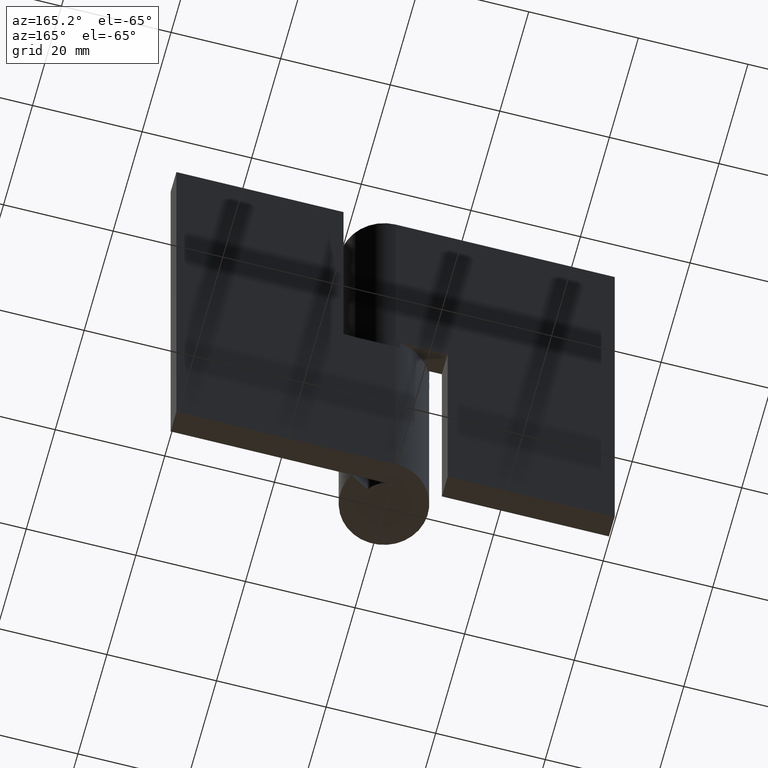
[diagram: clean part render]
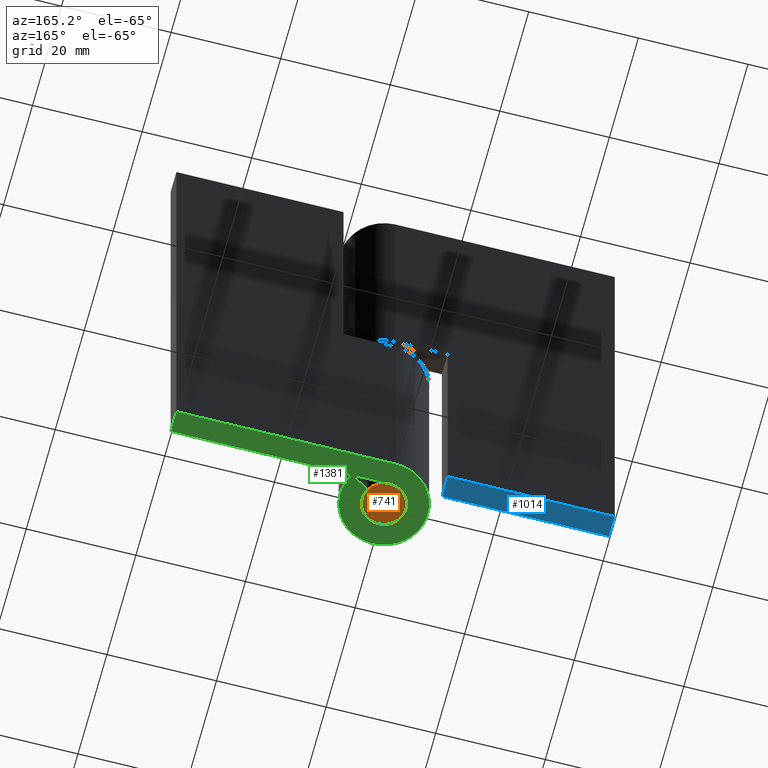
[diagram: same view with three faces highlighted in distinct colors, each labeled with its STEP entity id]
A machine part, auxiliary view with three faces highlighted in distinct colors.
Their STEP definitions:

[orange] entity #741 — the highlighted face is a freeform B-spline surface patch.
#549=CARTESIAN_POINT('',(0.244194158265194,-3.992539193679775,2.442491E-015));
#550=VERTEX_POINT('',#549);
#556=CARTESIAN_POINT('',(4.0,0.0,0.0));
#557=VERTEX_POINT('',#556);
#558=CARTESIAN_POINT('',(4.0,0.0,0.0));
#559=CARTESIAN_POINT('',(4.000000000000000,-3.762824267385283,0.0));
#560=CARTESIAN_POINT('',(0.244194158265194,-3.992539193679775,2.442491E-015));
#568=(BOUNDED_CURVE()B_SPLINE_CURVE(2,(#558,#559,#560),.UNSPECIFIED.,.F.,.U.)B_SPLINE_CURVE_WITH_KNOTS((3,3),(0.500000000000000,0.739332962231098),.UNSPECIFIED.)CURVE()GEOMETRIC_REPRESENTATION_ITEM()RATIONAL_B_SPLINE_CURVE((1.0,0.719603993295901,0.976072041649905))REPRESENTATION_ITEM(''));
#569=EDGE_CURVE('',#557,#550,#568,.T.);
#571=CARTESIAN_POINT('',(-0.472136938659875,3.972038105450762,2.725851E-015));
#572=VERTEX_POINT('',#571);
#573=CARTESIAN_POINT('',(-0.472136938659875,3.972038105450762,2.725851E-015));
#574=CARTESIAN_POINT('',(-0.236896478640829,4.0,0.0));
#575=CARTESIAN_POINT('',(0.0,4.0,0.0));
#576=CARTESIAN_POINT('',(4.000000000000000,4.000000000000000,0.0));
#577=CARTESIAN_POINT('',(4.0,0.0,0.0));
#585=(BOUNDED_CURVE()B_SPLINE_CURVE(2,(#573,#574,#575,#576,#577),.UNSPECIFIED.,.F.,.U.)B_SPLINE_CURVE_WITH_KNOTS((3,2,3),(0.229562473512850,0.250000000000000,0.500000000000000),.UNSPECIFIED.)CURVE()GEOMETRIC_REPRESENTATION_ITEM()RATIONAL_B_SPLINE_CURVE((0.956026754182408,0.976055948330373,1.0,0.707106781186548,1.0))REPRESENTATION_ITEM(''));
#586=EDGE_CURVE('',#572,#557,#585,.T.);
#630=CARTESIAN_POINT('',(-4.0,0.0,0.0));
#631=VERTEX_POINT('',#630);
#632=CARTESIAN_POINT('',(-4.0,0.0,0.0));
#633=CARTESIAN_POINT('',(-4.0,3.552698103746307,0.0));
#634=CARTESIAN_POINT('',(-0.472136938659875,3.972038105450762,2.725851E-015));
#642=(BOUNDED_CURVE()B_SPLINE_CURVE(2,(#632,#633,#634),.UNSPECIFIED.,.F.,.U.)B_SPLINE_CURVE_WITH_KNOTS((3,3),(0.0,0.229562473512850),.UNSPECIFIED.)CURVE()GEOMETRIC_REPRESENTATION_ITEM()RATIONAL_B_SPLINE_CURVE((1.0,0.731050832856174,0.956026754182408))REPRESENTATION_ITEM(''));
#643=EDGE_CURVE('',#631,#572,#642,.T.);
#645=CARTESIAN_POINT('',(0.244194158265194,-3.992539193679776,2.442491E-015));
#646=CARTESIAN_POINT('',(0.122211053320474,-4.0,0.0));
#647=CARTESIAN_POINT('',(0.0,-4.0,0.0));
#648=CARTESIAN_POINT('',(-4.000000000000000,-4.000000000000000,0.0));
#649=CARTESIAN_POINT('',(-4.0,0.0,0.0));
#657=(BOUNDED_CURVE()B_SPLINE_CURVE(2,(#645,#646,#647,#648,#649),.UNSPECIFIED.,.F.,.U.)B_SPLINE_CURVE_WITH_KNOTS((3,2,3),(0.739332962231098,0.750000000000000,1.0),.UNSPECIFIED.)CURVE()GEOMETRIC_REPRESENTATION_ITEM()RATIONAL_B_SPLINE_CURVE((0.976072041649904,0.987502787890646,1.0,0.707106781186548,1.0))REPRESENTATION_ITEM(''));
#658=EDGE_CURVE('',#550,#631,#657,.T.);
#730=CARTESIAN_POINT('',(-4.399599984494448,-4.399502628049594,0.0));
#731=CARTESIAN_POINT('',(4.399600199071169,-4.399502628049594,0.0));
#732=CARTESIAN_POINT('',(-4.399599984494448,4.399527232846957,0.0));
#733=CARTESIAN_POINT('',(4.399600199071169,4.399527232846957,0.0));
#734=B_SPLINE_SURFACE_WITH_KNOTS('',1,1,((#730,#732),(#731,#733)),.UNSPECIFIED.,.F.,.F.,.U.,(2,2),(2,2),(0.0,8.799200183565617),(0.0,8.799029860896550),.UNSPECIFIED.);
#735=ORIENTED_EDGE('',*,*,#643,.T.);
#736=ORIENTED_EDGE('',*,*,#586,.T.);
#737=ORIENTED_EDGE('',*,*,#569,.T.);
#738=ORIENTED_EDGE('',*,*,#658,.T.);
#739=EDGE_LOOP('',(#735,#736,#737,#738));
#740=FACE_OUTER_BOUND('',#739,.T.);
#741=ADVANCED_FACE('',(#740),#734,.F.);

[blue] entity #1014 — the highlighted face is a freeform B-spline surface patch.
#788=CARTESIAN_POINT('',(-9.500000000000000,8.0,0.0));
#789=VERTEX_POINT('',#788);
#790=CARTESIAN_POINT('',(-9.500000000000000,4.0,0.0));
#791=VERTEX_POINT('',#790);
#792=CARTESIAN_POINT('',(-9.500000000000000,8.0,0.0));
#793=CARTESIAN_POINT('',(-9.500000000000000,4.0,0.0));
#794=QUASI_UNIFORM_CURVE('',1,(#792,#793),.UNSPECIFIED.,.F.,.U.);
#795=EDGE_CURVE('',#789,#791,#794,.T.);
#973=CARTESIAN_POINT('',(-39.999993000000003,8.0,0.0));
#974=VERTEX_POINT('',#973);
#980=CARTESIAN_POINT('',(-39.999993000000003,4.0,0.0));
#981=VERTEX_POINT('',#980);
#982=CARTESIAN_POINT('',(-39.999993000000003,8.0,0.0));
#983=CARTESIAN_POINT('',(-39.999993000000003,4.0,0.0));
#984=QUASI_UNIFORM_CURVE('',1,(#982,#983),.UNSPECIFIED.,.F.,.U.);
#985=EDGE_CURVE('',#974,#981,#984,.T.);
#995=CARTESIAN_POINT('',(-41.523467018610873,3.800200007752776,0.0));
#996=CARTESIAN_POINT('',(-7.976524617933193,3.800200007752776,0.0));
#997=CARTESIAN_POINT('',(-41.523467018610873,8.199800099535585,0.0));
#998=CARTESIAN_POINT('',(-7.976524617933193,8.199800099535585,0.0));
#999=B_SPLINE_SURFACE_WITH_KNOTS('',1,1,((#995,#997),(#996,#998)),.UNSPECIFIED.,.F.,.F.,.U.,(2,2),(2,2),(0.0,33.546942400677672),(0.0,4.399600091782808),.UNSPECIFIED.);
#1000=CARTESIAN_POINT('',(-9.500000000000000,8.0,0.0));
#1001=CARTESIAN_POINT('',(-39.999993000000003,8.0,0.0));
#1002=QUASI_UNIFORM_CURVE('',1,(#1000,#1001),.UNSPECIFIED.,.F.,.U.);
#1003=EDGE_CURVE('',#789,#974,#1002,.T.);
#1004=ORIENTED_EDGE('',*,*,#1003,.F.);
#1005=ORIENTED_EDGE('',*,*,#795,.T.);
#1006=CARTESIAN_POINT('',(-39.999993000000003,4.0,0.0));
#1007=CARTESIAN_POINT('',(-9.500000000000000,4.0,0.0));
#1008=QUASI_UNIFORM_CURVE('',1,(#1006,#1007),.UNSPECIFIED.,.F.,.U.);
#1009=EDGE_CURVE('',#981,#791,#1008,.T.);
#1010=ORIENTED_EDGE('',*,*,#1009,.F.);
#1011=ORIENTED_EDGE('',*,*,#985,.F.);
#1012=EDGE_LOOP('',(#1004,#1005,#1010,#1011));
#1013=FACE_OUTER_BOUND('',#1012,.T.);
#1014=ADVANCED_FACE('',(#1013),#999,.F.);

[green] entity #1381 — the highlighted face is a freeform B-spline surface patch.
#1304=CARTESIAN_POINT('',(-10.397580681026060,-8.799121360714846,0.0));
#1305=CARTESIAN_POINT('',(42.397600279777542,-8.799121360714846,0.0));
#1306=CARTESIAN_POINT('',(-10.397580681026060,8.799196658454495,0.0));
#1307=CARTESIAN_POINT('',(42.397600279777542,8.799196658454495,0.0));
#1308=B_SPLINE_SURFACE_WITH_KNOTS('',1,1,((#1304,#1306),(#1305,#1307)),.UNSPECIFIED.,.F.,.F.,.U.,(2,2),(2,2),(0.0,52.795180960803599),(0.0,17.598318019169341),.UNSPECIFIED.);
#1309=CARTESIAN_POINT('',(3.478415587591571,1.975000000000000,0.0));
#1310=VERTEX_POINT('',#1309);
#1311=CARTESIAN_POINT('',(0.0,4.0,0.0));
#1312=VERTEX_POINT('',#1311);
#1313=CARTESIAN_POINT('',(3.478415587591569,1.975000000000001,0.0));
#1314=CARTESIAN_POINT('',(4.991063490863774,-0.689110402673284,0.0));
#1315=CARTESIAN_POINT('',(2.813108257766271,-2.843663469907650,0.0));
#1316=CARTESIAN_POINT('',(0.635153024668771,-4.998216537142015,0.0));
#1317=CARTESIAN_POINT('',(-2.012461179749808,-3.456877203488723,0.0));
#1318=CARTESIAN_POINT('',(-4.660075384168389,-1.915537869835431,0.0));
#1319=CARTESIAN_POINT('',(-3.861833037169971,1.042231065082284,0.0));
#1320=CARTESIAN_POINT('',(-3.063590690171554,4.0,0.0));
#1321=CARTESIAN_POINT('',(0.0,4.0,0.0));
#1329=(BOUNDED_CURVE()B_SPLINE_CURVE(2,(#1313,#1314,#1315,#1316,#1317,#1318,#1319,#1320,#1321),.UNSPECIFIED.,.F.,.U.)B_SPLINE_CURVE_WITH_KNOTS((3,2,2,2,3),(0.0,0.250000000000000,0.500000000000000,0.750000000000000,1.0),.UNSPECIFIED.)CURVE()GEOMETRIC_REPRESENTATION_ITEM()RATIONAL_B_SPLINE_CURVE((1.0,0.793901053743655,1.0,0.793901053743655,1.0,0.793901053743655,1.0,0.793901053743655,1.0))REPRESENTATION_ITEM(''));
#1330=EDGE_CURVE('',#1310,#1312,#1329,.T.);
#1331=ORIENTED_EDGE('',*,*,#1330,.F.);
#1332=CARTESIAN_POINT('',(6.956831175183141,3.950000000000000,0.0));
#1333=VERTEX_POINT('',#1332);
#1334=CARTESIAN_POINT('',(6.956831175183141,3.950000000000000,0.0));
#1335=CARTESIAN_POINT('',(3.478415587591571,1.975000000000000,0.0));
#1336=QUASI_UNIFORM_CURVE('',1,(#1334,#1335),.UNSPECIFIED.,.F.,.U.);
#1337=EDGE_CURVE('',#1333,#1310,#1336,.T.);
#1338=ORIENTED_EDGE('',*,*,#1337,.F.);
#1339=CARTESIAN_POINT('',(0.0,8.0,0.0));
#1340=VERTEX_POINT('',#1339);
#1341=CARTESIAN_POINT('',(6.956831175183138,3.950000000000002,0.0));
#1342=CARTESIAN_POINT('',(9.982126981727548,-1.378220805346568,0.0));
#1343=CARTESIAN_POINT('',(5.626216515532542,-5.687326939815300,0.0));
#1344=CARTESIAN_POINT('',(1.270306049337542,-9.996433074284029,0.0));
#1345=CARTESIAN_POINT('',(-4.024922359499616,-6.913754406977446,0.0));
#1346=CARTESIAN_POINT('',(-9.320150768336777,-3.831075739670861,0.0));
#1347=CARTESIAN_POINT('',(-7.723666074339943,2.084462130164569,0.0));
#1348=CARTESIAN_POINT('',(-6.127181380343109,8.0,0.0));
#1349=CARTESIAN_POINT('',(0.0,8.0,0.0));
#1357=(BOUNDED_CURVE()B_SPLINE_CURVE(2,(#1341,#1342,#1343,#1344,#1345,#1346,#1347,#1348,#1349),.UNSPECIFIED.,.F.,.U.)B_SPLINE_CURVE_WITH_KNOTS((3,2,2,2,3),(0.0,0.250000000000000,0.500000000000000,0.750000000000000,1.0),.UNSPECIFIED.)CURVE()GEOMETRIC_REPRESENTATION_ITEM()RATIONAL_B_SPLINE_CURVE((1.0,0.793901053743655,1.0,0.793901053743655,1.0,0.793901053743655,1.0,0.793901053743655,1.0))REPRESENTATION_ITEM(''));
#1358=EDGE_CURVE('',#1333,#1340,#1357,.T.);
#1359=ORIENTED_EDGE('',*,*,#1358,.T.);
#1360=CARTESIAN_POINT('',(40.0,8.0,0.0));
#1361=VERTEX_POINT('',#1360);
#1362=CARTESIAN_POINT('',(40.0,8.0,0.0));
#1363=CARTESIAN_POINT('',(0.0,8.0,0.0));
#1364=QUASI_UNIFORM_CURVE('',1,(#1362,#1363),.UNSPECIFIED.,.F.,.U.);
#1365=EDGE_CURVE('',#1361,#1340,#1364,.T.);
#1366=ORIENTED_EDGE('',*,*,#1365,.F.);
#1367=CARTESIAN_POINT('',(40.0,4.0,0.0));
#1368=VERTEX_POINT('',#1367);
#1369=CARTESIAN_POINT('',(40.0,4.0,0.0));
#1370=CARTESIAN_POINT('',(40.0,8.0,0.0));
#1371=QUASI_UNIFORM_CURVE('',1,(#1369,#1370),.UNSPECIFIED.,.F.,.U.);
#1372=EDGE_CURVE('',#1368,#1361,#1371,.T.);
#1373=ORIENTED_EDGE('',*,*,#1372,.F.);
#1374=CARTESIAN_POINT('',(0.0,4.0,0.0));
#1375=CARTESIAN_POINT('',(40.0,4.0,0.0));
#1376=QUASI_UNIFORM_CURVE('',1,(#1374,#1375),.UNSPECIFIED.,.F.,.U.);
#1377=EDGE_CURVE('',#1312,#1368,#1376,.T.);
#1378=ORIENTED_EDGE('',*,*,#1377,.F.);
#1379=EDGE_LOOP('',(#1331,#1338,#1359,#1366,#1373,#1378));
#1380=FACE_OUTER_BOUND('',#1379,.T.);
#1381=ADVANCED_FACE('',(#1380),#1308,.F.);